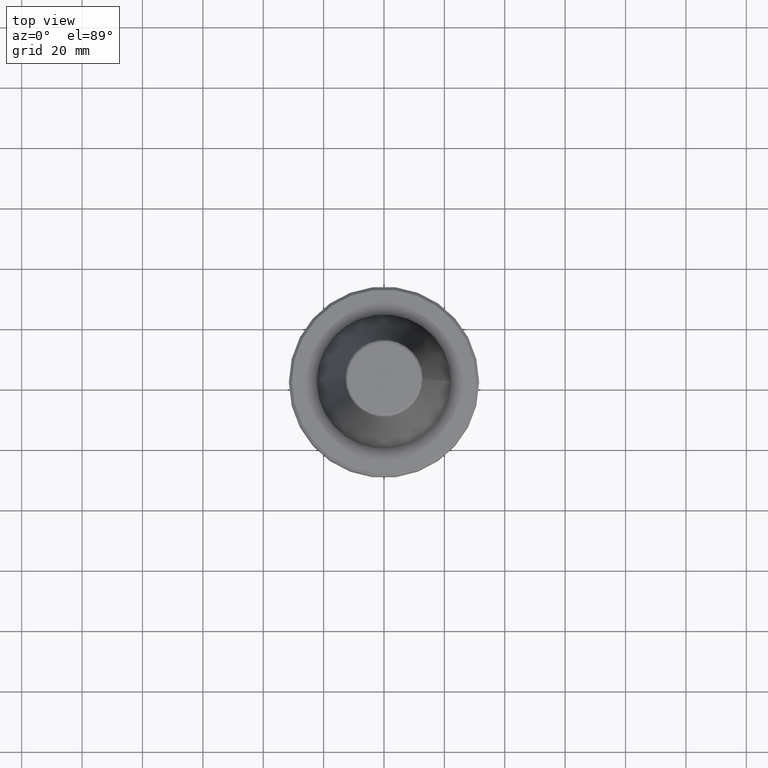
[diagram: clean part render]
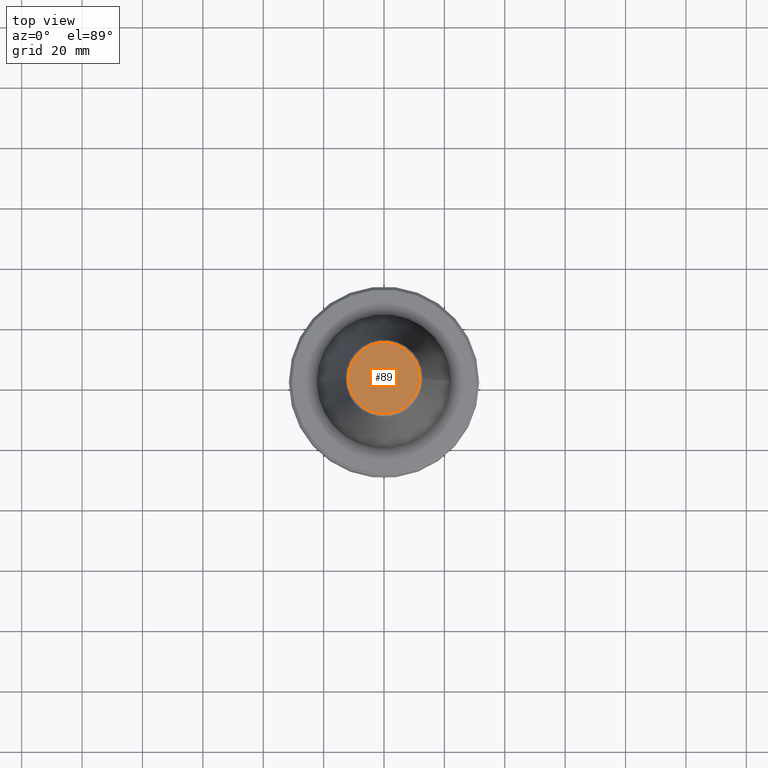
[diagram: same view with one face highlighted and labeled with its STEP entity id]
A machine part, top view. The second image highlights one B-rep face of the part: STEP entity #89.
In plain terms, the highlighted planar face has unit normal (0, 0, -1).
Its self-contained STEP definition (entity closure, byte-faithful):
#89 = ADVANCED_FACE ( 'NONE', ( #439 ), #216, .F. ) ;
#127 = EDGE_LOOP ( 'NONE', ( #908, #468 ) ) ;
#137 = CIRCLE ( 'NONE', #669, 11.82266927716801800 ) ;
#159 = DIRECTION ( 'NONE',  ( 1.000000000000000000, 0.0000000000000000000, 0.0000000000000000000 ) ) ;
#216 = PLANE ( 'NONE',  #715 ) ;
#243 = CARTESIAN_POINT ( 'NONE',  ( 0.0000000000000000000, 0.0000000000000000000, 66.08871321166032000 ) ) ;
#278 = CARTESIAN_POINT ( 'NONE',  ( 11.82266927716801800, 0.0000000000000000000, 66.08871321166032000 ) ) ;
#324 = DIRECTION ( 'NONE',  ( 1.000000000000000000, 0.0000000000000000000, 0.0000000000000000000 ) ) ;
#372 = VERTEX_POINT ( 'NONE', #278 ) ;
#387 = EDGE_CURVE ( 'NONE', #950, #372, #824, .T. ) ;
#439 = FACE_OUTER_BOUND ( 'NONE', #127, .T. ) ;
#468 = ORIENTED_EDGE ( 'NONE', *, *, #387, .T. ) ;
#504 = CARTESIAN_POINT ( 'NONE',  ( -11.82266927716801800, 1.508450817090320000E-015, 66.08871321166032000 ) ) ;
#529 = CARTESIAN_POINT ( 'NONE',  ( 0.0000000000000000000, 11.82266927716801800, 66.08871321166014900 ) ) ;
#544 = DIRECTION ( 'NONE',  ( -1.000000000000000000, 0.0000000000000000000, -0.0000000000000000000 ) ) ;
#669 = AXIS2_PLACEMENT_3D ( 'NONE', #243, #841, #324 ) ;
#696 = CARTESIAN_POINT ( 'NONE',  ( 0.0000000000000000000, 0.0000000000000000000, 66.08871321166032000 ) ) ;
#710 = DIRECTION ( 'NONE',  ( -0.0000000000000000000, -0.0000000000000000000, 1.000000000000000000 ) ) ;
#715 = AXIS2_PLACEMENT_3D ( 'NONE', #529, #1042, #544 ) ;
#824 = CIRCLE ( 'NONE', #1036, 11.82266927716801800 ) ;
#841 = DIRECTION ( 'NONE',  ( -0.0000000000000000000, -0.0000000000000000000, 1.000000000000000000 ) ) ;
#908 = ORIENTED_EDGE ( 'NONE', *, *, #1050, .T. ) ;
#950 = VERTEX_POINT ( 'NONE', #504 ) ;
#1036 = AXIS2_PLACEMENT_3D ( 'NONE', #696, #710, #159 ) ;
#1042 = DIRECTION ( 'NONE',  ( 0.0000000000000000000, 0.0000000000000000000, -1.000000000000000000 ) ) ;
#1050 = EDGE_CURVE ( 'NONE', #372, #950, #137, .T. ) ;